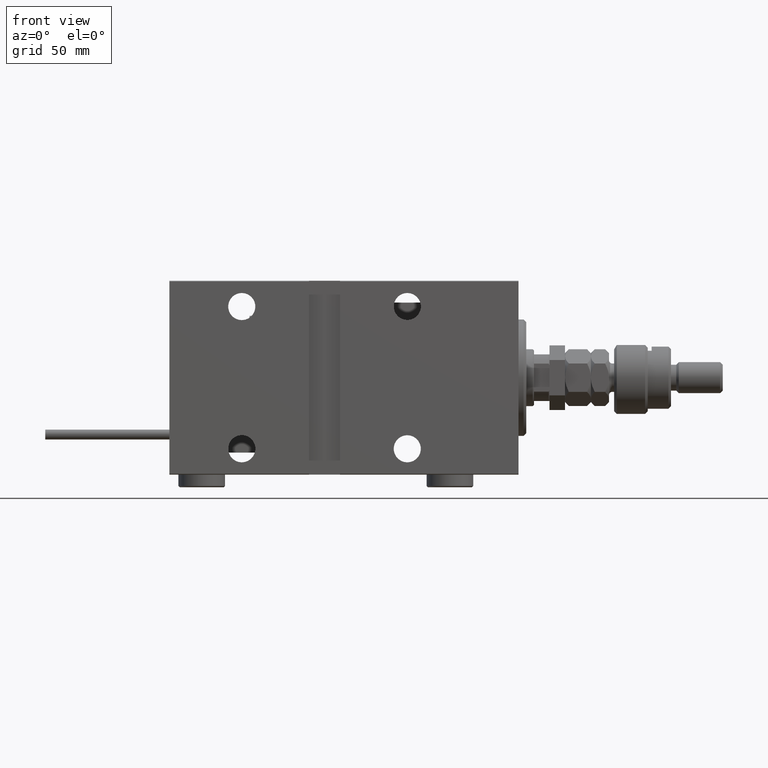
[diagram: clean part render]
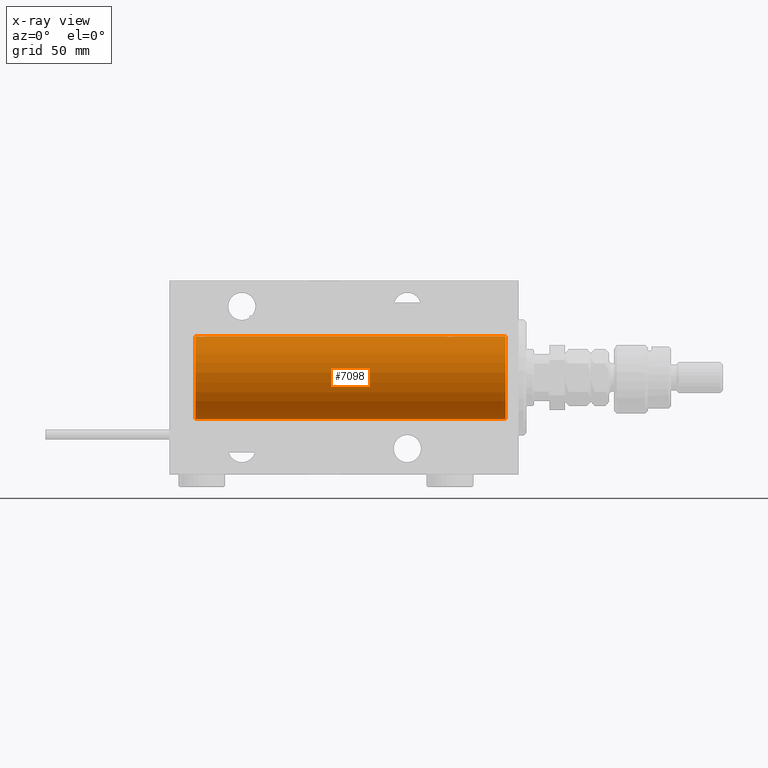
[diagram: x-ray — body ghosted, one internal face saturated and labeled with its STEP entity id]
A machine part, front view, then the same camera in x-ray: the body is ghosted and one INTERNAL B-rep face — a face not visible from any outside direction — is saturated and labeled: STEP entity #7098.
In plain terms, the highlighted cylindrical surface (partial cylindrical patch) has radius 16 mm, axis along (1, 0, -0).
Its self-contained STEP definition (entity closure, byte-faithful):
#589 = CYLINDRICAL_SURFACE ( 'NONE', #15945, 16.00000000000000000 ) ;
#1019 = CARTESIAN_POINT ( 'NONE',  ( 24.76517329325045225, 1.003662148334361959, 15.96885838080210007 ) ) ;
#1286 = CARTESIAN_POINT ( 'NONE',  ( 28.29713414748220046, 0.8874076679346754037, 15.97583181162460697 ) ) ;
#1560 = CARTESIAN_POINT ( 'NONE',  ( 24.90998471899876066, 1.220169175415113827, 15.95377581882983442 ) ) ;
#2021 = CARTESIAN_POINT ( 'NONE',  ( 125.0000000000000000, 0.000000000000000000, 16.00000000000000000 ) ) ;
#2557 = CARTESIAN_POINT ( 'NONE',  ( 125.0000000000000000, 0.000000000000000000, 16.00000000000000000 ) ) ;
#2796 = CARTESIAN_POINT ( 'NONE',  ( 120.5643094707387348, 0.5198215460038717595, 15.99206840425679310 ) ) ;
#3062 = CARTESIAN_POINT ( 'NONE',  ( 121.6138224294273158, 1.797743958659247854, 15.89876304682111652 ) ) ;
#3167 = VECTOR ( 'NONE', #42380, 1000.000000000000000 ) ;
#3600 = CARTESIAN_POINT ( 'NONE',  ( 121.2803234255772225, 1.590393755196000125, 15.92092783521423627 ) ) ;
#3972 = CARTESIAN_POINT ( 'NONE',  ( 124.5000000000000568, 0.1322838750249261675, 16.00000000000000355 ) ) ;
#4094 = VECTOR ( 'NONE', #43042, 1000.000000000000000 ) ;
#4369 = ORIENTED_EDGE ( 'NONE', *, *, #42725, .T. ) ;
#5135 = CARTESIAN_POINT ( 'NONE',  ( 24.70250071394960045, 0.8866640484200088990, 15.97587307151817448 ) ) ;
#5658 = CARTESIAN_POINT ( 'NONE',  ( 25.98086902289887234, 1.935876924222074358, 15.88247600692093187 ) ) ;
#6258 = AXIS2_PLACEMENT_3D ( 'NONE', #44835, #19689, #29464 ) ;
#7098 = ADVANCED_FACE ( 'NONE', ( #42695 ), #589, .F. ) ;
#7714 = CARTESIAN_POINT ( 'NONE',  ( 120.7025007139496040, 0.8866640484200094541, 15.97587307151818159 ) ) ;
#8346 = CARTESIAN_POINT ( 'NONE',  ( 124.0905150485210129, 1.219564485341765758, 15.95382484008322344 ) ) ;
#8615 = CARTESIAN_POINT ( 'NONE',  ( 122.3701469164950311, 2.000047931387136213, 15.87450182760079898 ) ) ;
#8798 = DIRECTION ( 'NONE',  ( -1.000000000000000000, -0.000000000000000000, -0.000000000000000000 ) ) ;
#9513 = CARTESIAN_POINT ( 'NONE',  ( 28.49999999999999645, -1.207828523974853969E-15, 16.00000000000000000 ) ) ;
#9774 = CARTESIAN_POINT ( 'NONE',  ( 25.28032342557723311, 1.590393755196000347, 15.92092783521424337 ) ) ;
#10136 = ORIENTED_EDGE ( 'NONE', *, *, #50935, .F. ) ;
#10216 = VERTEX_POINT ( 'NONE', #24804 ) ;
#11003 = CARTESIAN_POINT ( 'NONE',  ( 121.1792417517106912, 1.507649250492121951, 15.92908549642226745 ) ) ;
#12713 = CARTESIAN_POINT ( 'NONE',  ( 124.4870052400841445, 0.2623312429553332770, 15.99836091803360105 ) ) ;
#13348 = CARTESIAN_POINT ( 'NONE',  ( 25.49688752964961225, 1.735145127817741439, 15.90580292899658410 ) ) ;
#13882 = CARTESIAN_POINT ( 'NONE',  ( 28.43611326682063378, 0.5181437283162068086, 15.99211983514074298 ) ) ;
#14146 = CARTESIAN_POINT ( 'NONE',  ( 25.61382242942729803, 1.797743958659254515, 15.89876304682112007 ) ) ;
#14412 = CARTESIAN_POINT ( 'NONE',  ( 25.17924175171067702, 1.507649250492130388, 15.92908549642226745 ) ) ;
#14901 = ORIENTED_EDGE ( 'NONE', *, *, #31513, .T. ) ;
#15102 = CARTESIAN_POINT ( 'NONE',  ( 121.8561303196698589, 1.898058445420877982, 15.88709929148890154 ) ) ;
#15756 = VERTEX_POINT ( 'NONE', #2557 ) ;
#15945 = AXIS2_PLACEMENT_3D ( 'NONE', #45970, #21123, #17279 ) ;
#16483 = VERTEX_POINT ( 'NONE', #29205 ) ;
#16558 = CARTESIAN_POINT ( 'NONE',  ( 124.4361132668206551, 0.5181437283162084739, 15.99211983514075008 ) ) ;
#16726 = ORIENTED_EDGE ( 'NONE', *, *, #38780, .T. ) ;
#16826 = CARTESIAN_POINT ( 'NONE',  ( 124.0061071246824866, 1.322357532253812806, 15.94553003295878391 ) ) ;
#17279 = DIRECTION ( 'NONE',  ( 0.000000000000000000, 0.000000000000000000, 1.000000000000000000 ) ) ;
#17443 = CARTESIAN_POINT ( 'NONE',  ( 27.02531756459403667, 1.947280337074160927, 15.88137861827786779 ) ) ;
#17626 = CIRCLE ( 'NONE', #6258, 16.00000000000000000 ) ;
#18063 = AXIS2_PLACEMENT_3D ( 'NONE', #29544, #49485, #33638 ) ;
#18248 = CARTESIAN_POINT ( 'NONE',  ( 28.48700524008413382, 0.2623312429553315561, 15.99836091803360105 ) ) ;
#18985 = EDGE_CURVE ( 'NONE', #15756, #53664, #21080, .T. ) ;
#19654 = B_SPLINE_CURVE_WITH_KNOTS ( 'NONE', 3,
 ( #20934, #3972, #12713, #16558, #45782, #37346, #49886, #8346, #16826, #33513, #25026, #50156, #46058, #8615, #25295, #32330, #15102, #3062, #23591, #3600, #11003, #44883, #31807, #40263, #7714, #35892, #2796, #52547, #19744, #49518 ),
 .UNSPECIFIED., .F., .F.,
 ( 4, 2, 2, 2, 2, 2, 2, 2, 2, 2, 2, 2, 2, 2, 4 ),
 ( 3.488315472694475996E-18, 0.0003911894522871196605, 0.0007823789045742358516, 0.001173568356861352151, 0.001564757809148468234, 0.002347136713722699532, 0.003129515618296931263, 0.003520705070584047563, 0.003911894522871163862, 0.004303083975158279728, 0.004694273427445395594, 0.005085462879732512327, 0.005476652332019629060, 0.005867841784306744926, 0.006259031236593860792 ),
 .UNSPECIFIED. ) ;
#19689 = DIRECTION ( 'NONE',  ( -1.000000000000000000, 0.000000000000000000, 0.000000000000000000 ) ) ;
#19744 = CARTESIAN_POINT ( 'NONE',  ( 120.5000000000000426, 0.1305944228192297552, 16.00000000000000000 ) ) ;
#20934 = CARTESIAN_POINT ( 'NONE',  ( 124.5000000000000142, 3.590027768233731054E-15, 16.00000000000000000 ) ) ;
#21080 = LINE ( 'NONE', #45662, #3167 ) ;
#21123 = DIRECTION ( 'NONE',  ( -1.000000000000000000, -0.000000000000000000, -0.000000000000000000 ) ) ;
#21825 = CARTESIAN_POINT ( 'NONE',  ( 24.60216273501104567, 0.6445079780200539954, 15.98747331501412461 ) ) ;
#22090 = CARTESIAN_POINT ( 'NONE',  ( 24.51309075167874596, 0.2632563459770819736, 15.99834873924246459 ) ) ;
#22628 = CARTESIAN_POINT ( 'NONE',  ( 27.72956111739783580, 1.598790766515148620, 15.92099550861380131 ) ) ;
#23294 = CARTESIAN_POINT ( 'NONE',  ( 24.50000000000000000, -2.739635037742051899E-23, 16.00000000000000000 ) ) ;
#23591 = CARTESIAN_POINT ( 'NONE',  ( 121.4968875296496407, 1.735145127817741662, 15.90580292899658410 ) ) ;
#24521 = VECTOR ( 'NONE', #8798, 1000.000000000000000 ) ;
#24804 = CARTESIAN_POINT ( 'NONE',  ( 5.000000000000004441, 0.000000000000000000, 16.00000000000000000 ) ) ;
#25026 = CARTESIAN_POINT ( 'NONE',  ( 123.5065918155958542, 1.747750603376302614, 15.90457341008073477 ) ) ;
#25295 = CARTESIAN_POINT ( 'NONE',  ( 122.2374841699210180, 1.987008272775785622, 15.87616016863256618 ) ) ;
#26648 = LINE ( 'NONE', #2021, #4094 ) ;
#28189 = VERTEX_POINT ( 'NONE', #49023 ) ;
#28465 = VERTEX_POINT ( 'NONE', #23294 ) ;
#29205 = CARTESIAN_POINT ( 'NONE',  ( 28.49999999999999645, -1.207828523974853969E-15, 16.00000000000000000 ) ) ;
#29464 = DIRECTION ( 'NONE',  ( 0.000000000000000000, 0.000000000000000000, 1.000000000000000000 ) ) ;
#29544 = CARTESIAN_POINT ( 'NONE',  ( 125.0000000000000000, 0.000000000000000000, 0.000000000000000000 ) ) ;
#29598 = CARTESIAN_POINT ( 'NONE',  ( 125.0000000000000000, 1.959434878635765131E-15, -16.00000000000000000 ) ) ;
#30206 = VERTEX_POINT ( 'NONE', #33750 ) ;
#30851 = CARTESIAN_POINT ( 'NONE',  ( 27.50659181559580446, 1.747750603376297729, 15.90457341008072056 ) ) ;
#30957 = ORIENTED_EDGE ( 'NONE', *, *, #52080, .F. ) ;
#31116 = CARTESIAN_POINT ( 'NONE',  ( 26.23748416992101085, 1.987008272775788731, 15.87616016863256618 ) ) ;
#31513 = EDGE_CURVE ( 'NONE', #10216, #40944, #17626, .T. ) ;
#31807 = CARTESIAN_POINT ( 'NONE',  ( 120.9099847189987855, 1.220169175415117158, 15.95377581882983975 ) ) ;
#32330 = CARTESIAN_POINT ( 'NONE',  ( 121.9808690228988866, 1.935876924222072804, 15.88247600692093187 ) ) ;
#33513 = CARTESIAN_POINT ( 'NONE',  ( 123.7295611173978500, 1.598790766515140849, 15.92099550861381374 ) ) ;
#33638 = DIRECTION ( 'NONE',  ( 0.000000000000000000, 0.000000000000000000, 1.000000000000000000 ) ) ;
#33750 = CARTESIAN_POINT ( 'NONE',  ( 125.0000000000000000, 1.959434878635765131E-15, -16.00000000000000000 ) ) ;
#34132 = CARTESIAN_POINT ( 'NONE',  ( 26.37014691649501685, 2.000047931387139322, 15.87450182760079187 ) ) ;
#34419 = LINE ( 'NONE', #35221, #37925 ) ;
#34932 = CARTESIAN_POINT ( 'NONE',  ( 28.23568098498261492, 1.002241074716280655, 15.96895041604536480 ) ) ;
#34985 = ORIENTED_EDGE ( 'NONE', *, *, #18985, .T. ) ;
#35220 = CARTESIAN_POINT ( 'NONE',  ( 5.000000000000004441, 1.959434878635765131E-15, -16.00000000000000000 ) ) ;
#35221 = CARTESIAN_POINT ( 'NONE',  ( 125.0000000000000000, 0.000000000000000000, 16.00000000000000000 ) ) ;
#35892 = CARTESIAN_POINT ( 'NONE',  ( 120.6021627350110634, 0.6445079780200545505, 15.98747331501412461 ) ) ;
#36018 = EDGE_CURVE ( 'NONE', #28189, #16483, #34419, .T. ) ;
#36996 = ORIENTED_EDGE ( 'NONE', *, *, #51599, .T. ) ;
#37346 = CARTESIAN_POINT ( 'NONE',  ( 124.2971341474822253, 0.8874076679346750707, 15.97583181162460697 ) ) ;
#37925 = VECTOR ( 'NONE', #51884, 1000.000000000000000 ) ;
#38494 = CARTESIAN_POINT ( 'NONE',  ( 24.50000000000000000, -2.739635037742051899E-23, 16.00000000000000000 ) ) ;
#38780 = EDGE_CURVE ( 'NONE', #53664, #28189, #19654, .T. ) ;
#39299 = CARTESIAN_POINT ( 'NONE',  ( 28.09051504852099512, 1.219564485341767091, 15.95382484008323409 ) ) ;
#40263 = CARTESIAN_POINT ( 'NONE',  ( 120.7651732932504984, 1.003662148334365289, 15.96885838080210362 ) ) ;
#40944 = VERTEX_POINT ( 'NONE', #35220 ) ;
#42380 = DIRECTION ( 'NONE',  ( -1.000000000000000000, -0.000000000000000000, -0.000000000000000000 ) ) ;
#42695 = FACE_OUTER_BOUND ( 'NONE', #43100, .T. ) ;
#42725 = EDGE_CURVE ( 'NONE', #16483, #28465, #46022, .T. ) ;
#42855 = CARTESIAN_POINT ( 'NONE',  ( 28.49999999999998579, 0.1322838750249257511, 16.00000000000000000 ) ) ;
#43042 = DIRECTION ( 'NONE',  ( -1.000000000000000000, -0.000000000000000000, -0.000000000000000000 ) ) ;
#43100 = EDGE_LOOP ( 'NONE', ( #10136, #30957, #34985, #16726, #46794, #4369, #36996, #14901 ) ) ;
#43125 = CARTESIAN_POINT ( 'NONE',  ( 28.39758870055591444, 0.6452446332038146437, 15.98744362947834574 ) ) ;
#44253 = CIRCLE ( 'NONE', #18063, 16.00000000000000000 ) ;
#44835 = CARTESIAN_POINT ( 'NONE',  ( 5.000000000000004441, 0.000000000000000000, 0.000000000000000000 ) ) ;
#44883 = CARTESIAN_POINT ( 'NONE',  ( 120.9926283968757303, 1.321075116345873601, 15.94564302722883653 ) ) ;
#45662 = CARTESIAN_POINT ( 'NONE',  ( 125.0000000000000000, 0.000000000000000000, 16.00000000000000000 ) ) ;
#45782 = CARTESIAN_POINT ( 'NONE',  ( 124.3975887005559429, 0.6452446332038145327, 15.98744362947834929 ) ) ;
#45970 = CARTESIAN_POINT ( 'NONE',  ( 125.0000000000000000, 0.000000000000000000, 0.000000000000000000 ) ) ;
#46022 = B_SPLINE_CURVE_WITH_KNOTS ( 'NONE', 3,
 ( #9513, #42855, #18248, #13882, #43125, #1286, #34932, #39299, #46670, #22628, #30851, #17443, #51054, #34132, #31116, #5658, #51862, #14146, #13348, #9774, #14412, #47473, #1560, #1019, #5135, #21825, #47742, #22090, #51589, #38494 ),
 .UNSPECIFIED., .F., .F.,
 ( 4, 2, 2, 2, 2, 2, 2, 2, 2, 2, 2, 2, 2, 2, 4 ),
 ( 1.745049934674283425E-18, 0.0003911894522871204737, 0.0007823789045742392126, 0.001173568356861357789, 0.001564757809148476691, 0.002347136713722706037, 0.003129515618296936034, 0.003520705070584051466, 0.003911894522871166464, 0.004303083975158282330, 0.004694273427445396461, 0.005085462879732512327, 0.005476652332019627326, 0.005867841784306743191, 0.006259031236593858190 ),
 .UNSPECIFIED. ) ;
#46058 = CARTESIAN_POINT ( 'NONE',  ( 122.7619146276225450, 1.999903730784150069, 15.87451999516785861 ) ) ;
#46670 = CARTESIAN_POINT ( 'NONE',  ( 28.00610712468246177, 1.322357532253821910, 15.94553003295878391 ) ) ;
#46794 = ORIENTED_EDGE ( 'NONE', *, *, #36018, .T. ) ;
#47473 = CARTESIAN_POINT ( 'NONE',  ( 24.99262839687570903, 1.321075116345881595, 15.94564302722883298 ) ) ;
#47742 = CARTESIAN_POINT ( 'NONE',  ( 24.56430947073869930, 0.5198215460038717595, 15.99206840425678955 ) ) ;
#49023 = CARTESIAN_POINT ( 'NONE',  ( 120.5000000000000142, -2.738767290746308786E-23, 16.00000000000000000 ) ) ;
#49485 = DIRECTION ( 'NONE',  ( -1.000000000000000000, 0.000000000000000000, 0.000000000000000000 ) ) ;
#49518 = CARTESIAN_POINT ( 'NONE',  ( 120.5000000000000142, -2.738767290746308786E-23, 16.00000000000000000 ) ) ;
#49886 = CARTESIAN_POINT ( 'NONE',  ( 124.2356809849826220, 1.002241074716279989, 15.96895041604535770 ) ) ;
#50156 = CARTESIAN_POINT ( 'NONE',  ( 123.0253175645940047, 1.947280337074161150, 15.88137861827787489 ) ) ;
#50935 = EDGE_CURVE ( 'NONE', #30206, #40944, #52173, .T. ) ;
#51054 = CARTESIAN_POINT ( 'NONE',  ( 26.76191462762254858, 1.999903730784154066, 15.87451999516785861 ) ) ;
#51589 = CARTESIAN_POINT ( 'NONE',  ( 24.49999999999999289, 0.1305944228192297274, 15.99999999999999645 ) ) ;
#51599 = EDGE_CURVE ( 'NONE', #28465, #10216, #26648, .T. ) ;
#51862 = CARTESIAN_POINT ( 'NONE',  ( 25.85613031966986952, 1.898058445420883311, 15.88709929148890510 ) ) ;
#51884 = DIRECTION ( 'NONE',  ( -1.000000000000000000, -0.000000000000000000, -0.000000000000000000 ) ) ;
#52080 = EDGE_CURVE ( 'NONE', #15756, #30206, #44253, .T. ) ;
#52130 = CARTESIAN_POINT ( 'NONE',  ( 124.5000000000000142, 3.590027768233731054E-15, 16.00000000000000000 ) ) ;
#52173 = LINE ( 'NONE', #29598, #24521 ) ;
#52547 = CARTESIAN_POINT ( 'NONE',  ( 120.5130907516787602, 0.2632563459770823622, 15.99834873924246104 ) ) ;
#53664 = VERTEX_POINT ( 'NONE', #52130 ) ;